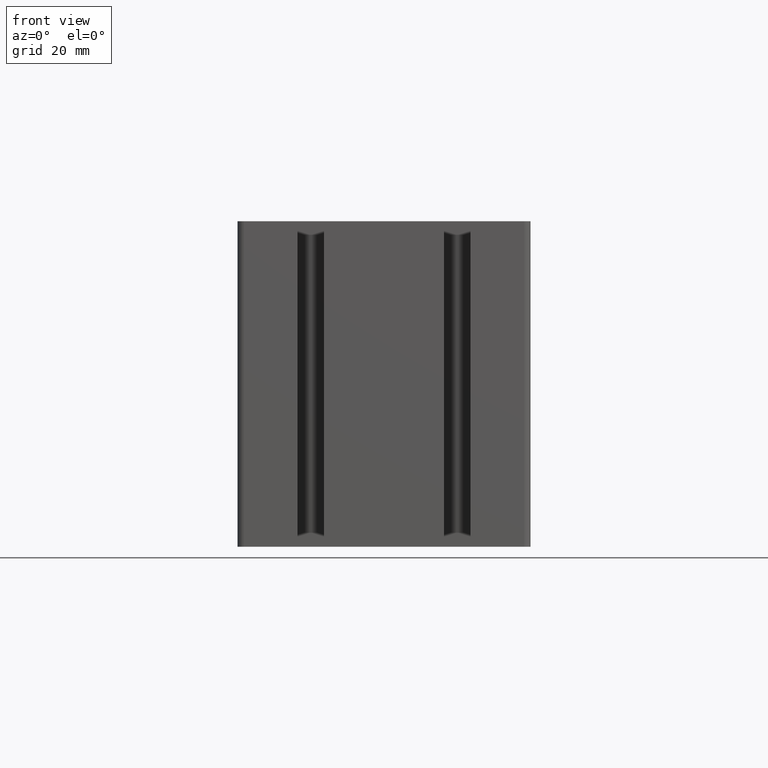
[diagram: clean part render]
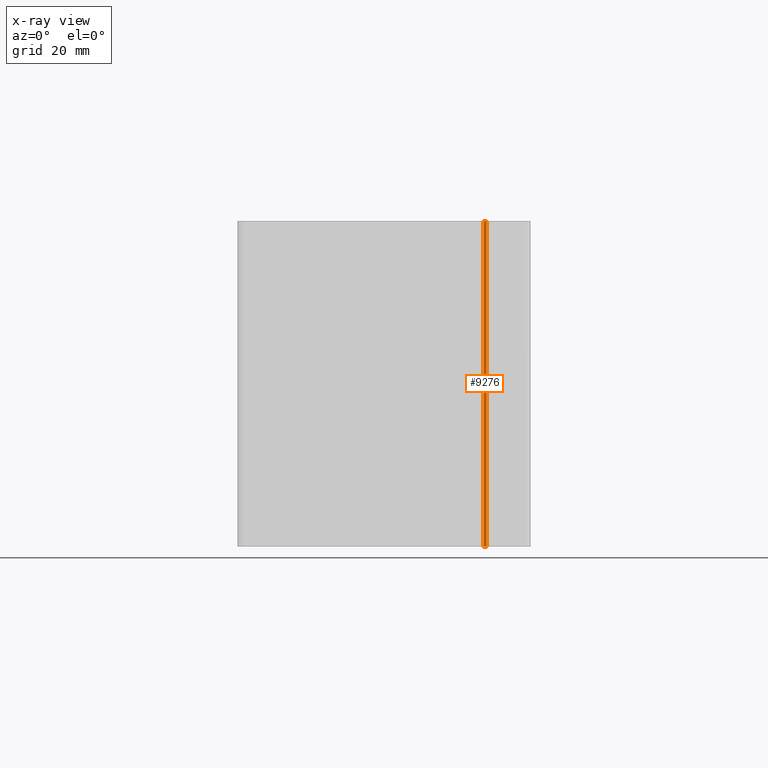
[diagram: x-ray — body ghosted, one internal face saturated and labeled with its STEP entity id]
A machine part, front view, then the same camera in x-ray: the body is ghosted and one INTERNAL B-rep face — a face not visible from any outside direction — is saturated and labeled: STEP entity #9276.
In plain terms, the highlighted planar face has unit normal (-0, 1, 0).
Its self-contained STEP definition (entity closure, byte-faithful):
#81=PLANE('',#9790);
#358=FACE_OUTER_BOUND('',#842,.T.);
#842=EDGE_LOOP('',(#6269,#6270,#6271,#6272));
#1398=LINE('',#13656,#2390);
#1399=LINE('',#13659,#2391);
#1400=LINE('',#13661,#2392);
#1401=LINE('',#13662,#2393);
#2390=VECTOR('',#10820,100.);
#2391=VECTOR('',#10823,0.900000000000007);
#2392=VECTOR('',#10824,0.900000000000007);
#2393=VECTOR('',#10825,100.);
#3827=VERTEX_POINT('',#13652);
#3828=VERTEX_POINT('',#13654);
#3829=VERTEX_POINT('',#13658);
#3830=VERTEX_POINT('',#13660);
#4812=EDGE_CURVE('',#3827,#3828,#1398,.T.);
#4813=EDGE_CURVE('',#3829,#3827,#1399,.T.);
#4814=EDGE_CURVE('',#3830,#3828,#1400,.T.);
#4815=EDGE_CURVE('',#3829,#3830,#1401,.T.);
#6269=ORIENTED_EDGE('',*,*,#4813,.T.);
#6270=ORIENTED_EDGE('',*,*,#4812,.T.);
#6271=ORIENTED_EDGE('',*,*,#4814,.F.);
#6272=ORIENTED_EDGE('',*,*,#4815,.F.);
#9276=ADVANCED_FACE('',(#358),#81,.T.);
#9790=AXIS2_PLACEMENT_3D('',#13657,#10821,#10822);
#10820=DIRECTION('',(0.,0.,-1.));
#10821=DIRECTION('center_axis',(-3.18203735037466E-14,1.,0.));
#10822=DIRECTION('ref_axis',(1.,3.12638803734444E-14,0.));
#10823=DIRECTION('',(1.,3.18203735037466E-14,0.));
#10824=DIRECTION('',(1.,3.18203735037466E-14,0.));
#10825=DIRECTION('',(0.,0.,-1.));
#13652=CARTESIAN_POINT('',(63.7500000000022,-88.440619342796,0.));
#13654=CARTESIAN_POINT('',(63.7500000000022,-88.440619342796,-100.));
#13656=CARTESIAN_POINT('',(63.7500000000022,-88.440619342796,0.));
#13657=CARTESIAN_POINT('Origin',(62.8500000000022,-88.4406193427961,0.));
#13658=CARTESIAN_POINT('',(62.8500000000022,-88.4406193427961,0.));
#13659=CARTESIAN_POINT('',(62.8500000000022,-88.4406193427961,0.));
#13660=CARTESIAN_POINT('',(62.8500000000022,-88.4406193427961,-100.));
#13661=CARTESIAN_POINT('',(62.8500000000022,-88.4406193427961,-100.));
#13662=CARTESIAN_POINT('',(62.8500000000022,-88.4406193427961,0.));